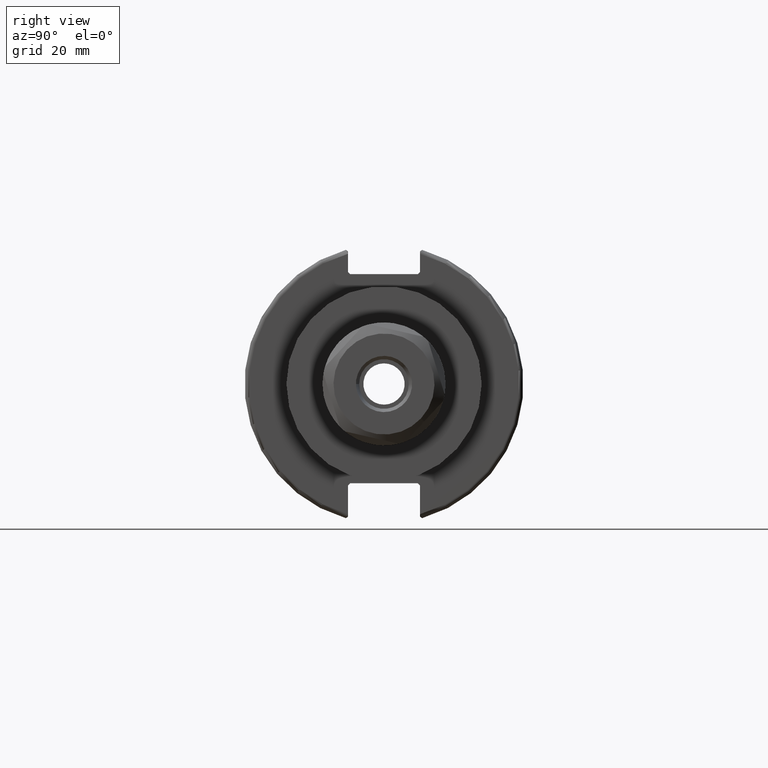
[diagram: clean part render]
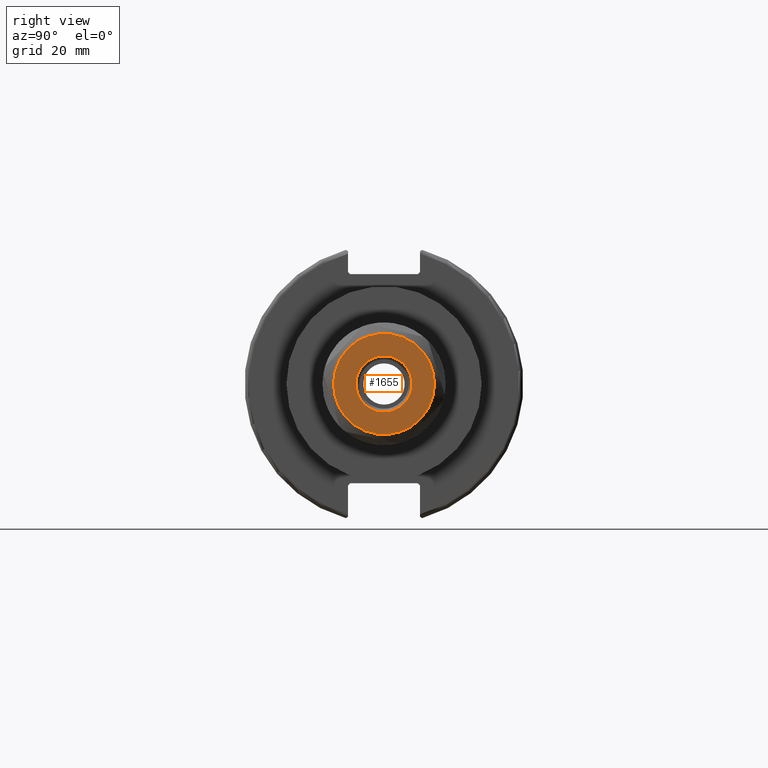
[diagram: same view with one face highlighted and labeled with its STEP entity id]
A machine part, right view. The second image highlights one B-rep face of the part: STEP entity #1655.
In plain terms, the highlighted planar face has unit normal (1, 0, 0).
Its self-contained STEP definition (entity closure, byte-faithful):
#132=FACE_BOUND('',#385,.T.);
#169=PLANE('',#1895);
#275=FACE_OUTER_BOUND('',#384,.T.);
#384=EDGE_LOOP('',(#1461));
#385=EDGE_LOOP('',(#1462));
#688=CIRCLE('',#1894,6.4);
#689=CIRCLE('',#1896,11.5);
#822=VERTEX_POINT('',#2930);
#823=VERTEX_POINT('',#2934);
#1040=EDGE_CURVE('',#822,#822,#688,.T.);
#1041=EDGE_CURVE('',#823,#823,#689,.T.);
#1461=ORIENTED_EDGE('',*,*,#1041,.T.);
#1462=ORIENTED_EDGE('',*,*,#1040,.F.);
#1655=ADVANCED_FACE('',(#275,#132),#169,.T.);
#1894=AXIS2_PLACEMENT_3D('',#2932,#2316,#2317);
#1895=AXIS2_PLACEMENT_3D('',#2933,#2318,#2319);
#1896=AXIS2_PLACEMENT_3D('',#2935,#2320,#2321);
#2316=DIRECTION('center_axis',(1.,0.,0.));
#2317=DIRECTION('ref_axis',(0.,1.,0.));
#2318=DIRECTION('center_axis',(1.,0.,0.));
#2319=DIRECTION('ref_axis',(0.,0.,-1.));
#2320=DIRECTION('center_axis',(1.,0.,0.));
#2321=DIRECTION('ref_axis',(0.,0.,1.));
#2930=CARTESIAN_POINT('',(8.75,6.4,0.));
#2932=CARTESIAN_POINT('Origin',(8.75,0.,0.));
#2933=CARTESIAN_POINT('Origin',(8.75,0.,0.));
#2934=CARTESIAN_POINT('',(8.75,0.,11.5));
#2935=CARTESIAN_POINT('Origin',(8.75,0.,0.));